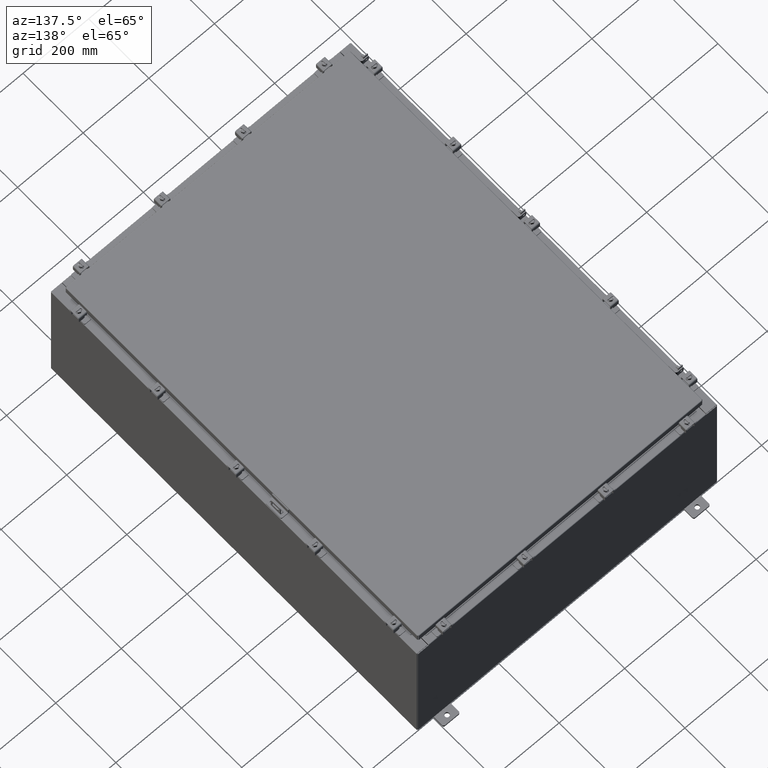
[diagram: clean part render]
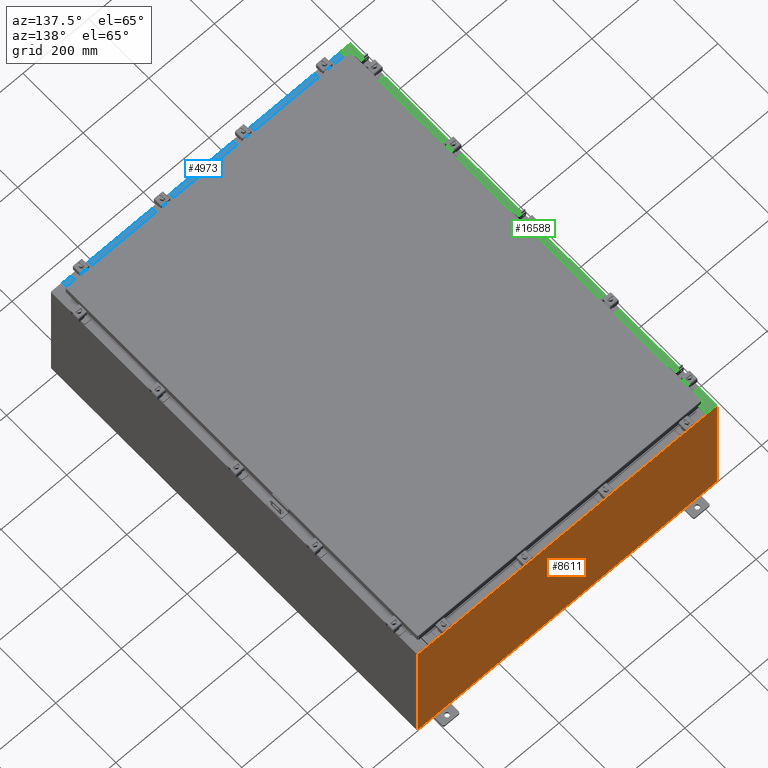
[diagram: same view with three faces highlighted in distinct colors, each labeled with its STEP entity id]
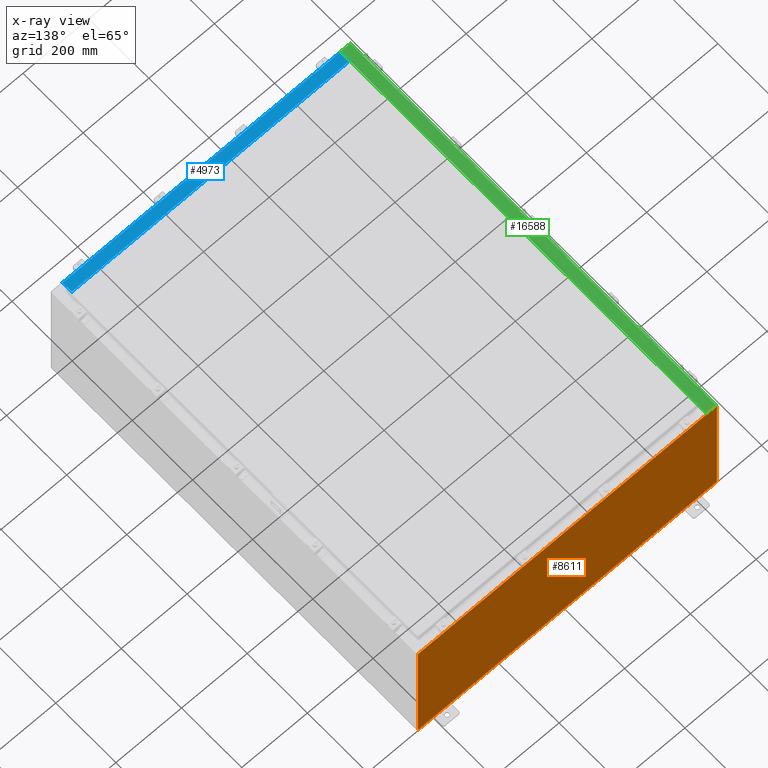
[diagram: x-ray of the same camera — body ghosted, the three highlighted faces saturated]
A machine part, auxiliary view with three faces highlighted in distinct colors.
The next image is the same camera in x-ray (body ghosted, the three faces saturated) — at least one of them is partly hidden behind the body in this view.
Their STEP definitions:

[orange] entity #8611 — the highlighted planar face has unit normal (0, -1, 0).
#159 = LINE ( 'NONE', #21455, #803 ) ;
#222 = AXIS2_PLACEMENT_3D ( 'NONE', #11174, #25891, #13264 ) ;
#803 = VECTOR ( 'NONE', #8812, 39.37007874015748100 ) ;
#1541 = DIRECTION ( 'NONE',  ( 1.000000000000000000, 0.0000000000000000000, 0.0000000000000000000 ) ) ;
#1685 = DIRECTION ( 'NONE',  ( 0.0000000000000000000, -0.0000000000000000000, -1.000000000000000000 ) ) ;
#1740 = EDGE_CURVE ( 'NONE', #4224, #22925, #23414, .T. ) ;
#1815 = CIRCLE ( 'NONE', #222, 0.01867499999999949400 ) ;
#1825 = ORIENTED_EDGE ( 'NONE', *, *, #7193, .F. ) ;
#2090 = VECTOR ( 'NONE', #16573, 39.37007874015748100 ) ;
#2283 = ORIENTED_EDGE ( 'NONE', *, *, #7833, .T. ) ;
#2685 = VERTEX_POINT ( 'NONE', #19779 ) ;
#2728 = VERTEX_POINT ( 'NONE', #2992 ) ;
#2779 = DIRECTION ( 'NONE',  ( -8.681145560800387200E-014, 0.0000000000000000000, -1.000000000000000000 ) ) ;
#2800 = LINE ( 'NONE', #25726, #24543 ) ;
#2958 = LINE ( 'NONE', #23696, #9223 ) ;
#2992 = CARTESIAN_POINT ( 'NONE',  ( -17.92530000000000000, 0.0000000000000000000, -7.925299999999997300 ) ) ;
#3497 = CARTESIAN_POINT ( 'NONE',  ( -16.63720000000000400, 0.0000000000000000000, 7.874950000000001900 ) ) ;
#3557 = CARTESIAN_POINT ( 'NONE',  ( -16.63720000000000400, -4.370956789862821100E-015, 7.912300000000007200 ) ) ;
#3699 = CARTESIAN_POINT ( 'NONE',  ( 16.67455000000000700, 0.0000000000000000000, 7.925300000000000900 ) ) ;
#3930 = ORIENTED_EDGE ( 'NONE', *, *, #10214, .F. ) ;
#4224 = VERTEX_POINT ( 'NONE', #6281 ) ;
#4797 = ORIENTED_EDGE ( 'NONE', *, *, #26239, .T. ) ;
#5035 = VERTEX_POINT ( 'NONE', #3699 ) ;
#5416 = EDGE_CURVE ( 'NONE', #15263, #2728, #22999, .T. ) ;
#5815 = CARTESIAN_POINT ( 'NONE',  ( -16.65587500000000200, 0.0000000000000000000, 7.874950000000001900 ) ) ;
#6281 = CARTESIAN_POINT ( 'NONE',  ( -16.63720000000000400, -4.370956789862821100E-015, 7.912300000000007200 ) ) ;
#6501 = ORIENTED_EDGE ( 'NONE', *, *, #17431, .F. ) ;
#6533 = CARTESIAN_POINT ( 'NONE',  ( -16.67455000000000000, 0.0000000000000000000, 7.874950000000001900 ) ) ;
#6870 = ORIENTED_EDGE ( 'NONE', *, *, #23901, .T. ) ;
#7001 = EDGE_CURVE ( 'NONE', #13797, #16506, #1815, .T. ) ;
#7193 = EDGE_CURVE ( 'NONE', #22925, #25587, #25832, .T. ) ;
#7461 = VECTOR ( 'NONE', #1541, 39.37007874015748100 ) ;
#7833 = EDGE_CURVE ( 'NONE', #5035, #9246, #23842, .T. ) ;
#7929 = DIRECTION ( 'NONE',  ( 0.0000000000000000000, 0.0000000000000000000, -1.000000000000000000 ) ) ;
#8611 = ADVANCED_FACE ( 'NONE', ( #19866 ), #12154, .F. ) ;
#8630 = DIRECTION ( 'NONE',  ( 0.0000000000000000000, 0.0000000000000000000, -1.000000000000000000 ) ) ;
#8812 = DIRECTION ( 'NONE',  ( 0.0000000000000000000, 0.0000000000000000000, 1.000000000000000000 ) ) ;
#8937 = DIRECTION ( 'NONE',  ( 0.0000000000000000000, 0.0000000000000000000, 1.000000000000000000 ) ) ;
#9223 = VECTOR ( 'NONE', #8937, 39.37007874015748100 ) ;
#9246 = VERTEX_POINT ( 'NONE', #14266 ) ;
#10214 = EDGE_CURVE ( 'NONE', #25587, #2685, #2958, .T. ) ;
#10498 = CARTESIAN_POINT ( 'NONE',  ( 16.67455000000000000, 0.0000000000000000000, 7.874950000000001900 ) ) ;
#11174 = CARTESIAN_POINT ( 'NONE',  ( 16.65587500000000200, 0.0000000000000000000, 7.874950000000001900 ) ) ;
#11234 = DIRECTION ( 'NONE',  ( -1.000000000000000000, -0.0000000000000000000, -0.0000000000000000000 ) ) ;
#11279 = CARTESIAN_POINT ( 'NONE',  ( -17.92530000000000000, 0.0000000000000000000, 7.925300000000000900 ) ) ;
#12154 = PLANE ( 'NONE',  #13518 ) ;
#13061 = LINE ( 'NONE', #3557, #7461 ) ;
#13264 = DIRECTION ( 'NONE',  ( 0.0000000000000000000, 0.0000000000000000000, -1.000000000000000000 ) ) ;
#13373 = LINE ( 'NONE', #11279, #24590 ) ;
#13518 = AXIS2_PLACEMENT_3D ( 'NONE', #24776, #14292, #1685 ) ;
#13797 = VERTEX_POINT ( 'NONE', #10498 ) ;
#13941 = CARTESIAN_POINT ( 'NONE',  ( 16.63720000000000400, 0.0000000000000000000, 7.912300000000002800 ) ) ;
#13991 = ORIENTED_EDGE ( 'NONE', *, *, #21678, .T. ) ;
#14266 = CARTESIAN_POINT ( 'NONE',  ( 17.92530000000000000, 0.0000000000000000000, 7.925300000000000900 ) ) ;
#14292 = DIRECTION ( 'NONE',  ( 0.0000000000000000000, -1.000000000000000000, 0.0000000000000000000 ) ) ;
#14583 = ORIENTED_EDGE ( 'NONE', *, *, #22017, .T. ) ;
#15263 = VERTEX_POINT ( 'NONE', #20742 ) ;
#15327 = DIRECTION ( 'NONE',  ( 1.000000000000000000, 0.0000000000000000000, -6.096072018129154100E-017 ) ) ;
#15564 = VERTEX_POINT ( 'NONE', #13941 ) ;
#15971 = ORIENTED_EDGE ( 'NONE', *, *, #25209, .F. ) ;
#16506 = VERTEX_POINT ( 'NONE', #24974 ) ;
#16573 = DIRECTION ( 'NONE',  ( 1.000000000000000000, 0.0000000000000000000, -6.096072018129154100E-017 ) ) ;
#17281 = EDGE_LOOP ( 'NONE', ( #3930, #1825, #25482, #13991, #6501, #22009, #15971, #2283, #4797, #24148, #14583, #6870 ) ) ;
#17431 = EDGE_CURVE ( 'NONE', #16506, #15564, #159, .T. ) ;
#17533 = CARTESIAN_POINT ( 'NONE',  ( 16.67454999999931800, 0.0000000000000000000, -1.447879436642059600E-012 ) ) ;
#17804 = VECTOR ( 'NONE', #26125, 39.37007874015748100 ) ;
#18042 = VECTOR ( 'NONE', #11234, 39.37007874015748100 ) ;
#19769 = VERTEX_POINT ( 'NONE', #26978 ) ;
#19779 = CARTESIAN_POINT ( 'NONE',  ( -16.67455000000000000, 0.0000000000000000000, 7.925300000000000900 ) ) ;
#19866 = FACE_OUTER_BOUND ( 'NONE', #17281, .T. ) ;
#20568 = VECTOR ( 'NONE', #2779, 39.37007874015748100 ) ;
#20580 = DIRECTION ( 'NONE',  ( -0.0000000000000000000, 1.000000000000000000, -0.0000000000000000000 ) ) ;
#20742 = CARTESIAN_POINT ( 'NONE',  ( 17.92530000000000000, 0.0000000000000000000, -7.925299999999997300 ) ) ;
#21166 = VECTOR ( 'NONE', #8630, 39.37007874015748100 ) ;
#21455 = CARTESIAN_POINT ( 'NONE',  ( 16.63720000000000400, 0.0000000000000000000, 0.0000000000000000000 ) ) ;
#21678 = EDGE_CURVE ( 'NONE', #4224, #15564, #13061, .T. ) ;
#22009 = ORIENTED_EDGE ( 'NONE', *, *, #7001, .F. ) ;
#22017 = EDGE_CURVE ( 'NONE', #2728, #19769, #13373, .T. ) ;
#22925 = VERTEX_POINT ( 'NONE', #3497 ) ;
#22944 = CARTESIAN_POINT ( 'NONE',  ( -17.92530000000000000, 0.0000000000000000000, 7.925300000000000900 ) ) ;
#22999 = LINE ( 'NONE', #23856, #18042 ) ;
#23387 = CARTESIAN_POINT ( 'NONE',  ( 17.92530000000000000, 0.0000000000000000000, 7.925300000000000900 ) ) ;
#23398 = AXIS2_PLACEMENT_3D ( 'NONE', #5815, #20580, #7929 ) ;
#23414 = LINE ( 'NONE', #24114, #17804 ) ;
#23696 = CARTESIAN_POINT ( 'NONE',  ( -16.67455000000000000, 0.0000000000000000000, 0.0000000000000000000 ) ) ;
#23842 = LINE ( 'NONE', #22944, #2090 ) ;
#23856 = CARTESIAN_POINT ( 'NONE',  ( -17.92530000000000000, 0.0000000000000000000, -7.925299999999997300 ) ) ;
#23901 = EDGE_CURVE ( 'NONE', #19769, #2685, #2800, .T. ) ;
#24114 = CARTESIAN_POINT ( 'NONE',  ( -16.63720000000000400, 0.0000000000000000000, 0.0000000000000000000 ) ) ;
#24148 = ORIENTED_EDGE ( 'NONE', *, *, #5416, .T. ) ;
#24543 = VECTOR ( 'NONE', #15327, 39.37007874015748100 ) ;
#24590 = VECTOR ( 'NONE', #25995, 39.37007874015748100 ) ;
#24776 = CARTESIAN_POINT ( 'NONE',  ( 0.0000000000000000000, 0.0000000000000000000, 0.0000000000000000000 ) ) ;
#24974 = CARTESIAN_POINT ( 'NONE',  ( 16.63720000000000400, 0.0000000000000000000, 7.874950000000001900 ) ) ;
#25209 = EDGE_CURVE ( 'NONE', #5035, #13797, #25471, .T. ) ;
#25413 = LINE ( 'NONE', #23387, #21166 ) ;
#25471 = LINE ( 'NONE', #17533, #20568 ) ;
#25482 = ORIENTED_EDGE ( 'NONE', *, *, #1740, .F. ) ;
#25587 = VERTEX_POINT ( 'NONE', #6533 ) ;
#25726 = CARTESIAN_POINT ( 'NONE',  ( -17.92530000000000000, 0.0000000000000000000, 7.925300000000000900 ) ) ;
#25832 = CIRCLE ( 'NONE', #23398, 0.01867499999999949400 ) ;
#25891 = DIRECTION ( 'NONE',  ( -0.0000000000000000000, 1.000000000000000000, -0.0000000000000000000 ) ) ;
#25995 = DIRECTION ( 'NONE',  ( -0.0000000000000000000, -0.0000000000000000000, 1.000000000000000000 ) ) ;
#26125 = DIRECTION ( 'NONE',  ( 0.0000000000000000000, 0.0000000000000000000, -1.000000000000000000 ) ) ;
#26239 = EDGE_CURVE ( 'NONE', #9246, #15263, #25413, .T. ) ;
#26978 = CARTESIAN_POINT ( 'NONE',  ( -17.92530000000000000, 0.0000000000000000000, 7.925300000000000900 ) ) ;

[blue] entity #4973 — the highlighted planar face has unit normal (-0, -0, 1).
#1072 = VECTOR ( 'NONE', #12825, 39.37007874015748100 ) ;
#1599 = DIRECTION ( 'NONE',  ( -3.225867722578196700E-016, -1.000000000000000000, 3.767692204910442100E-015 ) ) ;
#2230 = VERTEX_POINT ( 'NONE', #8710 ) ;
#3240 = EDGE_CURVE ( 'NONE', #12790, #27225, #16091, .T. ) ;
#3609 = PLANE ( 'NONE',  #6711 ) ;
#4468 = CARTESIAN_POINT ( 'NONE',  ( 16.63720000000001400, -1.287299999999999200, 8.000000000000017800 ) ) ;
#4799 = VECTOR ( 'NONE', #1599, 39.37007874015748100 ) ;
#4973 = ADVANCED_FACE ( 'NONE', ( #21625 ), #3609, .T. ) ;
#4988 = EDGE_CURVE ( 'NONE', #2230, #4993, #27203, .T. ) ;
#4993 = VERTEX_POINT ( 'NONE', #14191 ) ;
#5124 = VECTOR ( 'NONE', #8932, 39.37007874015748100 ) ;
#6474 = CARTESIAN_POINT ( 'NONE',  ( -16.63719999999998600, -0.07470000000000234800, 7.999999999999983100 ) ) ;
#6711 = AXIS2_PLACEMENT_3D ( 'NONE', #11975, #7842, #22586 ) ;
#7842 = DIRECTION ( 'NONE',  ( 1.064881197090255600E-015, 3.767692204910442100E-015, 1.000000000000000000 ) ) ;
#8184 = EDGE_CURVE ( 'NONE', #4993, #12790, #17247, .T. ) ;
#8682 = ORIENTED_EDGE ( 'NONE', *, *, #8184, .F. ) ;
#8710 = CARTESIAN_POINT ( 'NONE',  ( 16.63720000000001400, -0.08770000000000026400, 8.000000000000014200 ) ) ;
#8932 = DIRECTION ( 'NONE',  ( -1.000000000000000000, -3.882672471854376700E-016, -9.335202472350261400E-016 ) ) ;
#10508 = VECTOR ( 'NONE', #12817, 39.37007874015748100 ) ;
#11027 = EDGE_LOOP ( 'NONE', ( #19220, #8682, #26008, #22258 ) ) ;
#11710 = CARTESIAN_POINT ( 'NONE',  ( -16.63719999999998600, -0.08770000000000026400, 7.999999999999983100 ) ) ;
#11975 = CARTESIAN_POINT ( 'NONE',  ( 8.605321180042428600E-015, 2.622574073917692700E-014, 8.000000000000001800 ) ) ;
#12790 = VERTEX_POINT ( 'NONE', #23343 ) ;
#12817 = DIRECTION ( 'NONE',  ( 3.225867722578196700E-016, 1.000000000000000000, -3.767692204910442100E-015 ) ) ;
#12825 = DIRECTION ( 'NONE',  ( -1.000000000000000000, -3.225867722578232700E-016, -9.992007221626408900E-016 ) ) ;
#14191 = CARTESIAN_POINT ( 'NONE',  ( 16.63720000000001400, -1.287299999999999200, 8.000000000000017800 ) ) ;
#16091 = LINE ( 'NONE', #6474, #10508 ) ;
#17010 = LINE ( 'NONE', #23694, #5124 ) ;
#17247 = LINE ( 'NONE', #4468, #1072 ) ;
#19220 = ORIENTED_EDGE ( 'NONE', *, *, #3240, .F. ) ;
#21625 = FACE_OUTER_BOUND ( 'NONE', #11027, .T. ) ;
#22258 = ORIENTED_EDGE ( 'NONE', *, *, #22674, .T. ) ;
#22586 = DIRECTION ( 'NONE',  ( -3.225867722578196200E-016, -1.000000000000000000, 3.767692204910442100E-015 ) ) ;
#22674 = EDGE_CURVE ( 'NONE', #2230, #27225, #17010, .T. ) ;
#23343 = CARTESIAN_POINT ( 'NONE',  ( -16.63719999999998600, -1.287299999999999200, 7.999999999999987600 ) ) ;
#23694 = CARTESIAN_POINT ( 'NONE',  ( 8.519950930240421700E-015, -0.08770000000000026400, 8.000000000000001800 ) ) ;
#24679 = CARTESIAN_POINT ( 'NONE',  ( 16.63720000000001400, -1.300300000000001300, 8.000000000000017800 ) ) ;
#26008 = ORIENTED_EDGE ( 'NONE', *, *, #4988, .F. ) ;
#27203 = LINE ( 'NONE', #24679, #4799 ) ;
#27225 = VERTEX_POINT ( 'NONE', #11710 ) ;

[green] entity #16588 — the highlighted planar face has unit normal (0, 0, -1).
#257 = CARTESIAN_POINT ( 'NONE',  ( -16.75005000000006200, 22.63109999999999300, 15.92530000000000400 ) ) ;
#1233 = LINE ( 'NONE', #9736, #23027 ) ;
#1270 = CARTESIAN_POINT ( 'NONE',  ( -16.75005000000006200, -22.63109999999998200, 15.92530000000000400 ) ) ;
#1346 = EDGE_CURVE ( 'NONE', #3875, #8651, #20810, .T. ) ;
#2043 = CARTESIAN_POINT ( 'NONE',  ( -16.71270000000006200, 22.59374999999999300, 15.92530000000000400 ) ) ;
#2135 = DIRECTION ( 'NONE',  ( 5.349571789159788500E-015, 0.0000000000000000000, -1.000000000000000000 ) ) ;
#2141 = DIRECTION ( 'NONE',  ( -5.349571789159788500E-015, -0.0000000000000000000, 1.000000000000000000 ) ) ;
#2359 = DIRECTION ( 'NONE',  ( -5.349571789159788500E-015, -0.0000000000000000000, 1.000000000000000000 ) ) ;
#2484 = EDGE_CURVE ( 'NONE', #3775, #7635, #26308, .T. ) ;
#2554 = DIRECTION ( 'NONE',  ( 1.000000000000000000, 0.0000000000000000000, 0.0000000000000000000 ) ) ;
#3025 = AXIS2_PLACEMENT_3D ( 'NONE', #21040, #2135, #16886 ) ;
#3231 = DIRECTION ( 'NONE',  ( 1.000000000000000000, -8.681145560799821800E-014, 0.0000000000000000000 ) ) ;
#3281 = EDGE_CURVE ( 'NONE', #4098, #3875, #11800, .T. ) ;
#3317 = EDGE_CURVE ( 'NONE', #23306, #3775, #14773, .T. ) ;
#3397 = VECTOR ( 'NONE', #22784, 39.37007874015748100 ) ;
#3559 = VECTOR ( 'NONE', #5504, 39.37007874015748100 ) ;
#3713 = CARTESIAN_POINT ( 'NONE',  ( -16.69970000000006000, 22.63109999999999600, 15.92530000000000400 ) ) ;
#3775 = VERTEX_POINT ( 'NONE', #6856 ) ;
#3855 = ORIENTED_EDGE ( 'NONE', *, *, #1346, .T. ) ;
#3875 = VERTEX_POINT ( 'NONE', #13383 ) ;
#4098 = VERTEX_POINT ( 'NONE', #3713 ) ;
#4810 = VECTOR ( 'NONE', #2554, 39.37007874015748100 ) ;
#4877 = VECTOR ( 'NONE', #15043, 39.37007874015748100 ) ;
#4931 = DIRECTION ( 'NONE',  ( -1.000000000000000000, -8.144358738339257800E-032, -5.349571789159789300E-015 ) ) ;
#5504 = DIRECTION ( 'NONE',  ( -1.000000000000000000, 0.0000000000000000000, 0.0000000000000000000 ) ) ;
#5987 = VERTEX_POINT ( 'NONE', #257 ) ;
#5997 = VECTOR ( 'NONE', #23749, 39.37007874015748100 ) ;
#6018 = EDGE_CURVE ( 'NONE', #10262, #25501, #21639, .T. ) ;
#6212 = VECTOR ( 'NONE', #3231, 39.37007874015748100 ) ;
#6856 = CARTESIAN_POINT ( 'NONE',  ( -16.75005000000006200, -22.59374999999998200, 15.92530000000000400 ) ) ;
#6861 = CARTESIAN_POINT ( 'NONE',  ( -8.545562005181022800E-014, 23.92529999999998900, 15.92530000000009400 ) ) ;
#7596 = DIRECTION ( 'NONE',  ( -1.000000000000000000, -8.681145560799821800E-014, 0.0000000000000000000 ) ) ;
#7635 = VERTEX_POINT ( 'NONE', #1270 ) ;
#7948 = VERTEX_POINT ( 'NONE', #24716 ) ;
#8044 = CARTESIAN_POINT ( 'NONE',  ( -17.91230000000005900, 23.92529999999998900, 15.92529999999999800 ) ) ;
#8087 = VECTOR ( 'NONE', #9410, 39.37007874015748100 ) ;
#8121 = FACE_OUTER_BOUND ( 'NONE', #13973, .T. ) ;
#8651 = VERTEX_POINT ( 'NONE', #12245 ) ;
#8673 = DIRECTION ( 'NONE',  ( 1.000000000000000000, -3.566381192773192400E-015, 5.349571789159789300E-015 ) ) ;
#8768 = CARTESIAN_POINT ( 'NONE',  ( -16.71270000000006200, -22.59374999999998200, 15.92530000000000400 ) ) ;
#8887 = CARTESIAN_POINT ( 'NONE',  ( -16.75005000000006200, 22.59374999999999300, 15.92530000000000400 ) ) ;
#9004 = CARTESIAN_POINT ( 'NONE',  ( -16.69970000000006000, 0.0000000000000000000, 15.92530000000000400 ) ) ;
#9045 = ORIENTED_EDGE ( 'NONE', *, *, #15559, .F. ) ;
#9410 = DIRECTION ( 'NONE',  ( -0.0000000000000000000, -1.000000000000000000, -0.0000000000000000000 ) ) ;
#9736 = CARTESIAN_POINT ( 'NONE',  ( -16.69970000000006000, 22.63109999999999600, 15.92530000000000400 ) ) ;
#9804 = CIRCLE ( 'NONE', #13353, 0.01867499999999949400 ) ;
#10168 = ORIENTED_EDGE ( 'NONE', *, *, #2484, .F. ) ;
#10262 = VERTEX_POINT ( 'NONE', #19656 ) ;
#10925 = AXIS2_PLACEMENT_3D ( 'NONE', #14981, #2359, #17118 ) ;
#10957 = LINE ( 'NONE', #9004, #5997 ) ;
#11152 = ORIENTED_EDGE ( 'NONE', *, *, #18347, .F. ) ;
#11800 = LINE ( 'NONE', #12908, #4877 ) ;
#12029 = ORIENTED_EDGE ( 'NONE', *, *, #6018, .F. ) ;
#12245 = CARTESIAN_POINT ( 'NONE',  ( -17.91230000000005900, 23.92529999999998900, 15.92529999999999800 ) ) ;
#12312 = ORIENTED_EDGE ( 'NONE', *, *, #19290, .T. ) ;
#12908 = CARTESIAN_POINT ( 'NONE',  ( -16.69970000000006000, 0.0000000000000000000, 15.92530000000000400 ) ) ;
#13353 = AXIS2_PLACEMENT_3D ( 'NONE', #14768, #2141, #16892 ) ;
#13383 = CARTESIAN_POINT ( 'NONE',  ( -16.69970000000006000, 23.92529999999998900, 15.92530000000000400 ) ) ;
#13399 = ORIENTED_EDGE ( 'NONE', *, *, #3281, .T. ) ;
#13610 = ORIENTED_EDGE ( 'NONE', *, *, #15036, .F. ) ;
#13973 = EDGE_LOOP ( 'NONE', ( #9045, #13399, #3855, #11152, #12312, #23660, #13610, #10168, #17691, #25777, #12029, #15055 ) ) ;
#14762 = PLANE ( 'NONE',  #3025 ) ;
#14768 = CARTESIAN_POINT ( 'NONE',  ( -16.75005000000006200, 22.61242499999999100, 15.92530000000000400 ) ) ;
#14773 = LINE ( 'NONE', #8768, #3559 ) ;
#14981 = CARTESIAN_POINT ( 'NONE',  ( -16.75005000000006200, -22.61242499999998400, 15.92530000000000400 ) ) ;
#15036 = EDGE_CURVE ( 'NONE', #7635, #17481, #17426, .T. ) ;
#15043 = DIRECTION ( 'NONE',  ( 3.161623214578966600E-031, 1.000000000000000000, 1.691333035666432100E-045 ) ) ;
#15055 = ORIENTED_EDGE ( 'NONE', *, *, #21303, .F. ) ;
#15269 = LINE ( 'NONE', #8044, #3397 ) ;
#15559 = EDGE_CURVE ( 'NONE', #4098, #5987, #1233, .T. ) ;
#15842 = CARTESIAN_POINT ( 'NONE',  ( -16.75005000000006200, -22.63109999999998200, 15.92530000000000400 ) ) ;
#16560 = LINE ( 'NONE', #19195, #27074 ) ;
#16588 = ADVANCED_FACE ( 'NONE', ( #8121 ), #14762, .F. ) ;
#16886 = DIRECTION ( 'NONE',  ( -1.000000000000000000, 0.0000000000000000000, -5.349571789159788500E-015 ) ) ;
#16892 = DIRECTION ( 'NONE',  ( 1.000000000000000000, 0.0000000000000000000, 0.0000000000000000000 ) ) ;
#17118 = DIRECTION ( 'NONE',  ( 1.000000000000000000, 0.0000000000000000000, 0.0000000000000000000 ) ) ;
#17426 = LINE ( 'NONE', #15842, #6212 ) ;
#17481 = VERTEX_POINT ( 'NONE', #19893 ) ;
#17691 = ORIENTED_EDGE ( 'NONE', *, *, #3317, .F. ) ;
#18347 = EDGE_CURVE ( 'NONE', #7948, #8651, #15269, .T. ) ;
#19195 = CARTESIAN_POINT ( 'NONE',  ( -1.707746477039372600E-013, -23.92530000000005300, 15.92530000000009400 ) ) ;
#19290 = EDGE_CURVE ( 'NONE', #7948, #19986, #16560, .T. ) ;
#19471 = VECTOR ( 'NONE', #4931, 39.37007874015748100 ) ;
#19656 = CARTESIAN_POINT ( 'NONE',  ( -16.75005000000006200, 22.59374999999999300, 15.92530000000000400 ) ) ;
#19893 = CARTESIAN_POINT ( 'NONE',  ( -16.69970000000006000, -22.63109999999998600, 15.92530000000000400 ) ) ;
#19986 = VERTEX_POINT ( 'NONE', #23490 ) ;
#20076 = EDGE_CURVE ( 'NONE', #19986, #17481, #10957, .T. ) ;
#20810 = LINE ( 'NONE', #6861, #19471 ) ;
#21040 = CARTESIAN_POINT ( 'NONE',  ( -8.545562005181022800E-014, 0.0000000000000000000, 15.92530000000009400 ) ) ;
#21303 = EDGE_CURVE ( 'NONE', #5987, #10262, #9804, .T. ) ;
#21639 = LINE ( 'NONE', #8887, #4810 ) ;
#22032 = CARTESIAN_POINT ( 'NONE',  ( -16.71270000000006200, 22.59374999999999300, 15.92530000000000400 ) ) ;
#22784 = DIRECTION ( 'NONE',  ( -0.0000000000000000000, 1.000000000000000000, -0.0000000000000000000 ) ) ;
#22793 = EDGE_CURVE ( 'NONE', #25501, #23306, #24883, .T. ) ;
#23027 = VECTOR ( 'NONE', #7596, 39.37007874015748100 ) ;
#23306 = VERTEX_POINT ( 'NONE', #25674 ) ;
#23490 = CARTESIAN_POINT ( 'NONE',  ( -16.69970000000006000, -23.92529999999998600, 15.92530000000000400 ) ) ;
#23660 = ORIENTED_EDGE ( 'NONE', *, *, #20076, .T. ) ;
#23749 = DIRECTION ( 'NONE',  ( 3.161623214578966600E-031, 1.000000000000000000, 1.691333035666432100E-045 ) ) ;
#24716 = CARTESIAN_POINT ( 'NONE',  ( -17.91230000000005900, -23.92529999999998600, 15.92529999999999800 ) ) ;
#24883 = LINE ( 'NONE', #22032, #8087 ) ;
#25501 = VERTEX_POINT ( 'NONE', #2043 ) ;
#25674 = CARTESIAN_POINT ( 'NONE',  ( -16.71270000000006200, -22.59374999999998200, 15.92530000000000400 ) ) ;
#25777 = ORIENTED_EDGE ( 'NONE', *, *, #22793, .F. ) ;
#26308 = CIRCLE ( 'NONE', #10925, 0.01867499999999949400 ) ;
#27074 = VECTOR ( 'NONE', #8673, 39.37007874015748100 ) ;